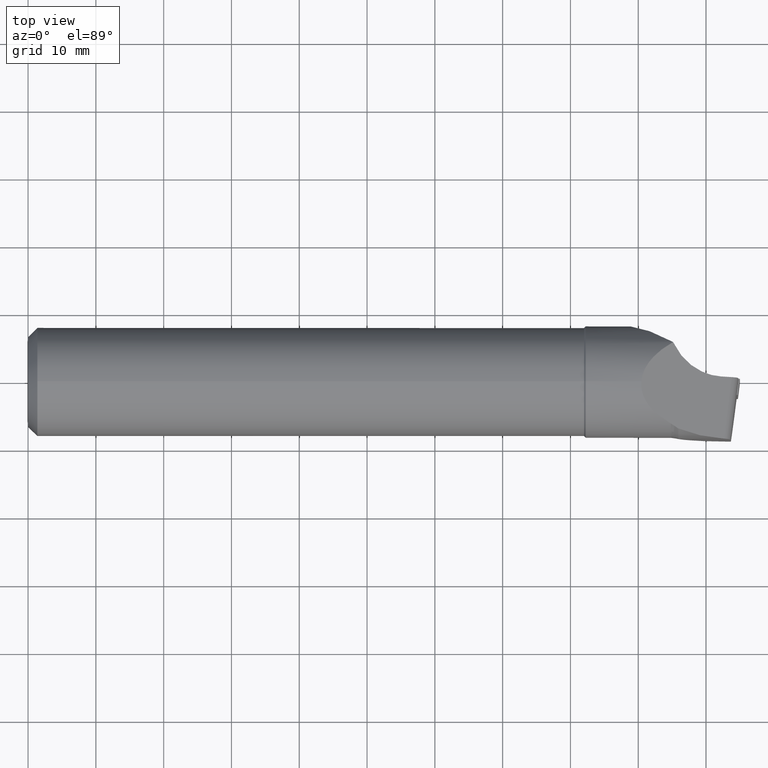
[diagram: clean part render]
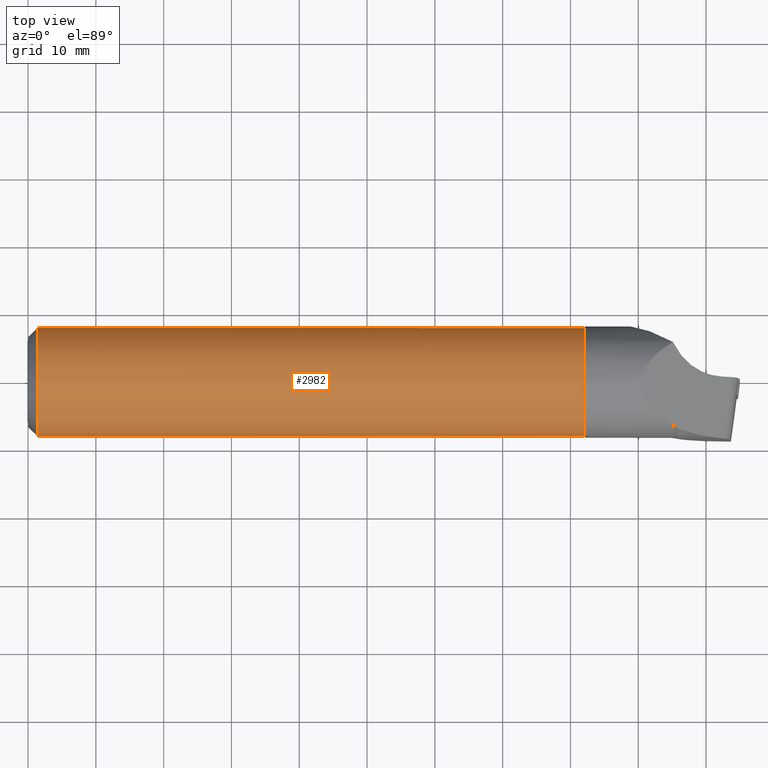
[diagram: same view with one face highlighted and labeled with its STEP entity id]
A machine part, top view. The second image highlights one B-rep face of the part: STEP entity #2982.
In plain terms, the highlighted cylindrical surface (bore or boss wall) has radius 8 mm, axis along (-1, -0, -0).
Its self-contained STEP definition (entity closure, byte-faithful):
#3 = FACE_OUTER_BOUND ( 'NONE', #1301, .T. ) ;
#4 = ORIENTED_EDGE ( 'NONE', *, *, #1723, .T. ) ;
#6 = CARTESIAN_POINT ( 'NONE',  ( -3.175455607189903200, 4.891942354525449200, -6.330000000000004500 ) ) ;
#25 = VERTEX_POINT ( 'NONE', #2370 ) ;
#75 = CARTESIAN_POINT ( 'NONE',  ( 53.00000000000005700, -4.891942354525447500, -6.329999999999993000 ) ) ;
#142 = LINE ( 'NONE', #6, #2165 ) ;
#152 = ORIENTED_EDGE ( 'NONE', *, *, #2342, .T. ) ;
#169 = CARTESIAN_POINT ( 'NONE',  ( 16.00000000000000700, 4.891942354525451900, -6.330000000000003600 ) ) ;
#177 = FACE_BOUND ( 'NONE', #1095, .T. ) ;
#205 = ORIENTED_EDGE ( 'NONE', *, *, #1165, .T. ) ;
#217 = CARTESIAN_POINT ( 'NONE',  ( 24.00000000000002100, -4.891942354525449200, -6.330000000000003600 ) ) ;
#263 = FACE_BOUND ( 'NONE', #2408, .T. ) ;
#298 = VERTEX_POINT ( 'NONE', #754 ) ;
#324 = CARTESIAN_POINT ( 'NONE',  ( 57.18333978702810300, 1.894266158577141200, -8.646660212971928800 ) ) ;
#361 =( BOUNDED_CURVE ( )  B_SPLINE_CURVE ( 3, ( #1146, #2006, #1738, #3734 ),
 .UNSPECIFIED., .F., .F. ) 
 B_SPLINE_CURVE_WITH_KNOTS ( ( 4, 4 ),
 ( 2.483646807032367000, 3.799538500147218800 ),
 .UNSPECIFIED. ) 
 CURVE ( )  GEOMETRIC_REPRESENTATION_ITEM ( )  RATIONAL_B_SPLINE_CURVE ( ( 1.000000000000000000, 0.8608333333333331200, 0.8608333333333331200, 1.000000000000000000 ) ) 
 REPRESENTATION_ITEM ( '' )  );
#380 = CARTESIAN_POINT ( 'NONE',  ( 55.31666021297200300, 1.894266158577141400, -8.646660212971925200 ) ) ;
#389 = CIRCLE ( 'NONE', #2180, 8.000000000000003600 ) ;
#391 = DIRECTION ( 'NONE',  ( -1.000000000000000000, -8.847089727481710000E-017, -5.551115123125779000E-017 ) ) ;
#434 = EDGE_CURVE ( 'NONE', #2116, #1190, #3199, .T. ) ;
#439 = LINE ( 'NONE', #3448, #1822 ) ;
#443 = FACE_BOUND ( 'NONE', #2579, .T. ) ;
#463 = EDGE_CURVE ( 'NONE', #2962, #2805, #361, .T. ) ;
#480 = CARTESIAN_POINT ( 'NONE',  ( -3.175455607189916900, -4.891942354525453700, -6.329999999999999200 ) ) ;
#534 = EDGE_CURVE ( 'NONE', #553, #2448, #142, .T. ) ;
#536 = VECTOR ( 'NONE', #3222, 1000.000000000000000 ) ;
#548 = EDGE_CURVE ( 'NONE', #1247, #1006, #2423, .T. ) ;
#553 = VERTEX_POINT ( 'NONE', #2376 ) ;
#572 = DIRECTION ( 'NONE',  ( -1.000000000000000000, -8.847089727481710000E-017, -5.551115123125779000E-017 ) ) ;
#584 = CARTESIAN_POINT ( 'NONE',  ( 69.81666021297202500, -1.894266158577131000, -8.646660212971925200 ) ) ;
#605 = DIRECTION ( 'NONE',  ( -1.000000000000000000, -8.847089727481710000E-017, -5.551115123125779000E-017 ) ) ;
#629 = CARTESIAN_POINT ( 'NONE',  ( 28.18333978702806800, -1.894266158577138300, -8.646660212971925200 ) ) ;
#645 = ORIENTED_EDGE ( 'NONE', *, *, #667, .T. ) ;
#662 = VERTEX_POINT ( 'NONE', #3597 ) ;
#667 = EDGE_CURVE ( 'NONE', #3195, #1972, #1228, .T. ) ;
#722 = CARTESIAN_POINT ( 'NONE',  ( 13.68333978702805200, 1.894266158577136800, -8.646660212971928800 ) ) ;
#754 = CARTESIAN_POINT ( 'NONE',  ( 16.00000000000000700, 4.891942354525451900, -6.330000000000003600 ) ) ;
#761 = DIRECTION ( 'NONE',  ( 1.000000000000000000, 8.847089727481710000E-017, 5.551115123125779000E-017 ) ) ;
#766 = ORIENTED_EDGE ( 'NONE', *, *, #975, .T. ) ;
#796 = CARTESIAN_POINT ( 'NONE',  ( 59.50000000000004300, 4.891942354525458100, -6.330000000000001800 ) ) ;
#847 = VERTEX_POINT ( 'NONE', #796 ) ;
#856 = DIRECTION ( 'NONE',  ( 1.000000000000000000, 8.847089727481710000E-017, 5.551115123125779000E-017 ) ) ;
#869 = VECTOR ( 'NONE', #1548, 1000.000000000000000 ) ;
#885 = CARTESIAN_POINT ( 'NONE',  ( 1.375000000000008200, 1.084202172485504400E-016, 3.469446951953614200E-015 ) ) ;
#909 = CARTESIAN_POINT ( 'NONE',  ( 59.50000000000004300, 4.891942354525458100, -6.330000000000001800 ) ) ;
#941 = CARTESIAN_POINT ( 'NONE',  ( -3.175455607189916900, -4.891942354525453700, -6.329999999999999200 ) ) ;
#949 = VECTOR ( 'NONE', #761, 1000.000000000000000 ) ;
#950 = ORIENTED_EDGE ( 'NONE', *, *, #2519, .T. ) ;
#967 = ORIENTED_EDGE ( 'NONE', *, *, #1750, .T. ) ;
#975 = EDGE_CURVE ( 'NONE', #1972, #2377, #3657, .T. ) ;
#984 = DIRECTION ( 'NONE',  ( -1.000000000000000000, -8.847089727481710000E-017, -5.551115123125779000E-017 ) ) ;
#1006 = VERTEX_POINT ( 'NONE', #2930 ) ;
#1020 = CARTESIAN_POINT ( 'NONE',  ( -3.175455607189903200, 4.891942354525449200, -6.330000000000004500 ) ) ;
#1023 = CARTESIAN_POINT ( 'NONE',  ( 45.00000000000002800, 4.891942354525459900, -6.330000000000001800 ) ) ;
#1031 = CARTESIAN_POINT ( 'NONE',  ( 30.50000000000001800, 4.891942354525453700, -6.330000000000001800 ) ) ;
#1044 = ORIENTED_EDGE ( 'NONE', *, *, #548, .T. ) ;
#1054 = CARTESIAN_POINT ( 'NONE',  ( 45.00000000000002800, 4.891942354525459900, -6.330000000000001800 ) ) ;
#1095 = EDGE_LOOP ( 'NONE', ( #950, #1222, #967, #1044 ) ) ;
#1146 = CARTESIAN_POINT ( 'NONE',  ( 9.500000000000001800, -4.891942354525450100, -6.330000000000000100 ) ) ;
#1165 = EDGE_CURVE ( 'NONE', #1286, #662, #1659, .T. ) ;
#1168 = ORIENTED_EDGE ( 'NONE', *, *, #1862, .T. ) ;
#1178 = LINE ( 'NONE', #3255, #2343 ) ;
#1190 = VERTEX_POINT ( 'NONE', #3118 ) ;
#1222 = ORIENTED_EDGE ( 'NONE', *, *, #434, .T. ) ;
#1228 = LINE ( 'NONE', #3014, #2752 ) ;
#1229 = ORIENTED_EDGE ( 'NONE', *, *, #3186, .T. ) ;
#1247 = VERTEX_POINT ( 'NONE', #1031 ) ;
#1286 = VERTEX_POINT ( 'NONE', #3225 ) ;
#1295 = CARTESIAN_POINT ( 'NONE',  ( 13.68333978702805400, -1.894266158577140300, -8.646660212971925200 ) ) ;
#1301 = EDGE_LOOP ( 'NONE', ( #1803 ) ) ;
#1329 = ORIENTED_EDGE ( 'NONE', *, *, #463, .T. ) ;
#1400 = CARTESIAN_POINT ( 'NONE',  ( 38.50000000000002100, 4.891942354525455400, -6.329999999999998300 ) ) ;
#1420 = CARTESIAN_POINT ( 'NONE',  ( 69.81666021297202500, 1.894266158577143000, -8.646660212971928800 ) ) ;
#1446 = CARTESIAN_POINT ( 'NONE',  ( 1.374999999999883200, 4.891942354525351500, -6.329999999999999200 ) ) ;
#1498 = CARTESIAN_POINT ( 'NONE',  ( 57.18333978702810300, -1.894266158577135700, -8.646660212971927000 ) ) ;
#1543 = EDGE_CURVE ( 'NONE', #662, #1656, #1751, .T. ) ;
#1548 = DIRECTION ( 'NONE',  ( 1.000000000000000000, 8.847089727481710000E-017, 5.551115123125779000E-017 ) ) ;
#1592 = CARTESIAN_POINT ( 'NONE',  ( 45.00000000000004300, -4.891942354525448300, -6.330000000000001800 ) ) ;
#1596 = CARTESIAN_POINT ( 'NONE',  ( 16.00000000000001800, -4.891942354525453700, -6.330000000000001000 ) ) ;
#1631 = ORIENTED_EDGE ( 'NONE', *, *, #3649, .F. ) ;
#1656 = VERTEX_POINT ( 'NONE', #3145 ) ;
#1659 = LINE ( 'NONE', #941, #869 ) ;
#1686 = CARTESIAN_POINT ( 'NONE',  ( -3.175455607189916900, -4.891942354525453700, -6.329999999999999200 ) ) ;
#1698 = CARTESIAN_POINT ( 'NONE',  ( 1.375000000000001300, -4.891942354525451900, -6.330000000000002700 ) ) ;
#1721 = CARTESIAN_POINT ( 'NONE',  ( 26.31666021297197100, -1.894266158577133900, -8.646660212971925200 ) ) ;
#1723 = EDGE_CURVE ( 'NONE', #2377, #847, #1829, .T. ) ;
#1728 = CARTESIAN_POINT ( 'NONE',  ( 40.81666021297200300, 1.894266158577143000, -8.646660212971928800 ) ) ;
#1738 = CARTESIAN_POINT ( 'NONE',  ( 11.81666021297193800, 1.894266158577135000, -8.646660212971930500 ) ) ;
#1743 = VECTOR ( 'NONE', #391, 1000.000000000000000 ) ;
#1750 = EDGE_CURVE ( 'NONE', #1190, #1247, #1178, .T. ) ;
#1751 =( BOUNDED_CURVE ( )  B_SPLINE_CURVE ( 3, ( #217, #1721, #2532, #3162 ),
 .UNSPECIFIED., .F., .F. ) 
 B_SPLINE_CURVE_WITH_KNOTS ( ( 4, 4 ),
 ( 2.483646807032367400, 3.799538500147218800 ),
 .UNSPECIFIED. ) 
 CURVE ( )  GEOMETRIC_REPRESENTATION_ITEM ( )  RATIONAL_B_SPLINE_CURVE ( ( 1.000000000000000000, 0.8608333333333334500, 0.8608333333333334500, 1.000000000000000000 ) ) 
 REPRESENTATION_ITEM ( '' )  );
#1753 = CARTESIAN_POINT ( 'NONE',  ( 38.50000000000003600, -4.891942354525449200, -6.330000000000003600 ) ) ;
#1759 = EDGE_CURVE ( 'NONE', #847, #3195, #2366, .T. ) ;
#1765 = CARTESIAN_POINT ( 'NONE',  ( 30.50000000000001800, 4.891942354525453700, -6.330000000000001800 ) ) ;
#1803 = ORIENTED_EDGE ( 'NONE', *, *, #3016, .T. ) ;
#1807 = CARTESIAN_POINT ( 'NONE',  ( 28.18333978702806400, 1.894266158577138300, -8.646660212971928800 ) ) ;
#1812 = CARTESIAN_POINT ( 'NONE',  ( 53.00000000000005000, 4.891942354525455400, -6.329999999999994700 ) ) ;
#1822 = VECTOR ( 'NONE', #856, 1000.000000000000000 ) ;
#1829 = LINE ( 'NONE', #3176, #1970 ) ;
#1851 = CARTESIAN_POINT ( 'NONE',  ( 9.500000000000001800, -4.891942354525450100, -6.330000000000000100 ) ) ;
#1862 = EDGE_CURVE ( 'NONE', #25, #553, #2512, .T. ) ;
#1897 = CARTESIAN_POINT ( 'NONE',  ( 67.50000000000005700, 4.891942354525459000, -6.330000000000006300 ) ) ;
#1918 = FACE_BOUND ( 'NONE', #2083, .T. ) ;
#1951 = CARTESIAN_POINT ( 'NONE',  ( 9.500000000000008900, 4.891942354525451900, -6.330000000000001800 ) ) ;
#1970 = VECTOR ( 'NONE', #2177, 1000.000000000000000 ) ;
#1972 = VERTEX_POINT ( 'NONE', #2781 ) ;
#2006 = CARTESIAN_POINT ( 'NONE',  ( 11.81666021297193800, -1.894266158577138800, -8.646660212971928800 ) ) ;
#2073 = DIRECTION ( 'NONE',  ( 2.710505431213759900E-017, 1.951563910473907100E-017, 1.000000000000000000 ) ) ;
#2074 = DIRECTION ( 'NONE',  ( -1.000000000000000000, -8.847089727481710000E-017, -5.551115123125779000E-017 ) ) ;
#2083 = EDGE_LOOP ( 'NONE', ( #645, #766, #4, #3435 ) ) ;
#2116 = VERTEX_POINT ( 'NONE', #2963 ) ;
#2140 = EDGE_CURVE ( 'NONE', #2805, #3534, #3518, .T. ) ;
#2165 = VECTOR ( 'NONE', #2074, 1000.000000000000000 ) ;
#2177 = DIRECTION ( 'NONE',  ( -1.000000000000000000, -8.847089727481710000E-017, -5.551115123125779000E-017 ) ) ;
#2180 = AXIS2_PLACEMENT_3D ( 'NONE', #2199, #984, #3077 ) ;
#2199 = CARTESIAN_POINT ( 'NONE',  ( 82.00000000000007100, 1.170938346284344800E-014, 6.071532165918824800E-015 ) ) ;
#2231 =( BOUNDED_CURVE ( )  B_SPLINE_CURVE ( 3, ( #169, #722, #1295, #1596 ),
 .UNSPECIFIED., .F., .T. ) 
 B_SPLINE_CURVE_WITH_KNOTS ( ( 4, 4 ),
 ( 5.625239460622160500, 6.941131153737012800 ),
 .UNSPECIFIED. ) 
 CURVE ( )  GEOMETRIC_REPRESENTATION_ITEM ( )  RATIONAL_B_SPLINE_CURVE ( ( 1.000000000000000000, 0.8608333333333331200, 0.8608333333333331200, 1.000000000000000000 ) ) 
 REPRESENTATION_ITEM ( '' )  );
#2287 = ORIENTED_EDGE ( 'NONE', *, *, #3383, .T. ) ;
#2338 = CYLINDRICAL_SURFACE ( 'NONE', #2452, 8.000000000000003600 ) ;
#2342 = EDGE_CURVE ( 'NONE', #298, #1286, #2231, .T. ) ;
#2343 = VECTOR ( 'NONE', #572, 1000.000000000000000 ) ;
#2344 = CARTESIAN_POINT ( 'NONE',  ( 67.50000000000005700, -4.891942354525447500, -6.330000000000001800 ) ) ;
#2360 = EDGE_LOOP ( 'NONE', ( #1329, #3503, #1631, #3689 ) ) ;
#2366 =( BOUNDED_CURVE ( )  B_SPLINE_CURVE ( 3, ( #909, #324, #1498, #3546 ),
 .UNSPECIFIED., .F., .F. ) 
 B_SPLINE_CURVE_WITH_KNOTS ( ( 4, 4 ),
 ( 5.625239460622160500, 6.941131153737012800 ),
 .UNSPECIFIED. ) 
 CURVE ( )  GEOMETRIC_REPRESENTATION_ITEM ( )  RATIONAL_B_SPLINE_CURVE ( ( 1.000000000000000000, 0.8608333333333331200, 0.8608333333333331200, 1.000000000000000000 ) ) 
 REPRESENTATION_ITEM ( '' )  );
#2370 = CARTESIAN_POINT ( 'NONE',  ( 53.00000000000005700, -4.891942354525447500, -6.329999999999993000 ) ) ;
#2376 = CARTESIAN_POINT ( 'NONE',  ( 53.00000000000005000, 4.891942354525455400, -6.329999999999994700 ) ) ;
#2377 = VERTEX_POINT ( 'NONE', #1897 ) ;
#2408 = EDGE_LOOP ( 'NONE', ( #1229, #1168, #3125, #2836 ) ) ;
#2423 =( BOUNDED_CURVE ( )  B_SPLINE_CURVE ( 3, ( #1765, #1807, #629, #2648 ),
 .UNSPECIFIED., .F., .F. ) 
 B_SPLINE_CURVE_WITH_KNOTS ( ( 4, 4 ),
 ( 5.625239460622160500, 6.941131153737012800 ),
 .UNSPECIFIED. ) 
 CURVE ( )  GEOMETRIC_REPRESENTATION_ITEM ( )  RATIONAL_B_SPLINE_CURVE ( ( 1.000000000000000000, 0.8608333333333331200, 0.8608333333333331200, 1.000000000000000000 ) ) 
 REPRESENTATION_ITEM ( '' )  );
#2437 = DIRECTION ( 'NONE',  ( -1.000000000000000000, -8.847089727481710000E-017, -5.551115123125779000E-017 ) ) ;
#2448 = VERTEX_POINT ( 'NONE', #1054 ) ;
#2450 = DIRECTION ( 'NONE',  ( 1.000000000000000000, 8.847089727481710000E-017, 5.551115123125779000E-017 ) ) ;
#2452 = AXIS2_PLACEMENT_3D ( 'NONE', #3465, #2437, #3261 ) ;
#2512 =( BOUNDED_CURVE ( )  B_SPLINE_CURVE ( 3, ( #75, #2990, #380, #1812 ),
 .UNSPECIFIED., .F., .F. ) 
 B_SPLINE_CURVE_WITH_KNOTS ( ( 4, 4 ),
 ( 2.483646807032367400, 3.799538500147218800 ),
 .UNSPECIFIED. ) 
 CURVE ( )  GEOMETRIC_REPRESENTATION_ITEM ( )  RATIONAL_B_SPLINE_CURVE ( ( 1.000000000000000000, 0.8608333333333334500, 0.8608333333333334500, 1.000000000000000000 ) ) 
 REPRESENTATION_ITEM ( '' )  );
#2519 = EDGE_CURVE ( 'NONE', #1006, #2116, #3428, .T. ) ;
#2532 = CARTESIAN_POINT ( 'NONE',  ( 26.31666021297197100, 1.894266158577140100, -8.646660212971925200 ) ) ;
#2563 = VECTOR ( 'NONE', #3729, 1000.000000000000000 ) ;
#2579 = EDGE_LOOP ( 'NONE', ( #205, #2998, #2287, #152 ) ) ;
#2648 = CARTESIAN_POINT ( 'NONE',  ( 30.50000000000002500, -4.891942354525452800, -6.330000000000000100 ) ) ;
#2672 = EDGE_CURVE ( 'NONE', #2448, #2882, #2877, .T. ) ;
#2752 = VECTOR ( 'NONE', #2450, 1000.000000000000000 ) ;
#2759 = VERTEX_POINT ( 'NONE', #1698 ) ;
#2781 = CARTESIAN_POINT ( 'NONE',  ( 67.50000000000005700, -4.891942354525447500, -6.330000000000001800 ) ) ;
#2805 = VERTEX_POINT ( 'NONE', #1951 ) ;
#2836 = ORIENTED_EDGE ( 'NONE', *, *, #2672, .T. ) ;
#2877 =( BOUNDED_CURVE ( )  B_SPLINE_CURVE ( 3, ( #1023, #3087, #3104, #1592 ),
 .UNSPECIFIED., .F., .F. ) 
 B_SPLINE_CURVE_WITH_KNOTS ( ( 4, 4 ),
 ( 5.625239460622160500, 6.941131153737012800 ),
 .UNSPECIFIED. ) 
 CURVE ( )  GEOMETRIC_REPRESENTATION_ITEM ( )  RATIONAL_B_SPLINE_CURVE ( ( 1.000000000000000000, 0.8608333333333331200, 0.8608333333333331200, 1.000000000000000000 ) ) 
 REPRESENTATION_ITEM ( '' )  );
#2882 = VERTEX_POINT ( 'NONE', #2902 ) ;
#2891 = VERTEX_POINT ( 'NONE', #3631 ) ;
#2902 = CARTESIAN_POINT ( 'NONE',  ( 45.00000000000004300, -4.891942354525448300, -6.330000000000001800 ) ) ;
#2930 = CARTESIAN_POINT ( 'NONE',  ( 30.50000000000002500, -4.891942354525452800, -6.330000000000000100 ) ) ;
#2936 = CARTESIAN_POINT ( 'NONE',  ( 40.81666021297200300, -1.894266158577132500, -8.646660212971927000 ) ) ;
#2962 = VERTEX_POINT ( 'NONE', #1851 ) ;
#2963 = CARTESIAN_POINT ( 'NONE',  ( 38.50000000000003600, -4.891942354525449200, -6.330000000000003600 ) ) ;
#2980 = CARTESIAN_POINT ( 'NONE',  ( -3.175455607189903200, 4.891942354525449200, -6.330000000000004500 ) ) ;
#2982 = ADVANCED_FACE ( 'NONE', ( #1918, #263, #177, #443, #3023, #3 ), #2338, .T. ) ;
#2990 = CARTESIAN_POINT ( 'NONE',  ( 55.31666021297200300, -1.894266158577132100, -8.646660212971925200 ) ) ;
#2998 = ORIENTED_EDGE ( 'NONE', *, *, #1543, .T. ) ;
#3014 = CARTESIAN_POINT ( 'NONE',  ( -3.175455607189916900, -4.891942354525453700, -6.329999999999999200 ) ) ;
#3016 = EDGE_CURVE ( 'NONE', #2891, #2891, #389, .T. ) ;
#3023 = FACE_OUTER_BOUND ( 'NONE', #2360, .T. ) ;
#3077 = DIRECTION ( 'NONE',  ( 0.0000000000000000000, 1.951563910473904000E-017, 1.000000000000000000 ) ) ;
#3087 = CARTESIAN_POINT ( 'NONE',  ( 42.68333978702808200, 1.894266158577138300, -8.646660212971928800 ) ) ;
#3104 = CARTESIAN_POINT ( 'NONE',  ( 42.68333978702808200, -1.894266158577138300, -8.646660212971927000 ) ) ;
#3118 = CARTESIAN_POINT ( 'NONE',  ( 38.50000000000002100, 4.891942354525455400, -6.329999999999998300 ) ) ;
#3125 = ORIENTED_EDGE ( 'NONE', *, *, #534, .T. ) ;
#3145 = CARTESIAN_POINT ( 'NONE',  ( 24.00000000000001400, 4.891942354525452800, -6.329999999999998300 ) ) ;
#3162 = CARTESIAN_POINT ( 'NONE',  ( 24.00000000000001400, 4.891942354525452800, -6.329999999999998300 ) ) ;
#3176 = CARTESIAN_POINT ( 'NONE',  ( -3.175455607189903200, 4.891942354525449200, -6.330000000000004500 ) ) ;
#3186 = EDGE_CURVE ( 'NONE', #2882, #25, #3299, .T. ) ;
#3195 = VERTEX_POINT ( 'NONE', #3409 ) ;
#3199 =( BOUNDED_CURVE ( )  B_SPLINE_CURVE ( 3, ( #1753, #2936, #1728, #1400 ),
 .UNSPECIFIED., .F., .F. ) 
 B_SPLINE_CURVE_WITH_KNOTS ( ( 4, 4 ),
 ( 2.483646807032367000, 3.799538500147219300 ),
 .UNSPECIFIED. ) 
 CURVE ( )  GEOMETRIC_REPRESENTATION_ITEM ( )  RATIONAL_B_SPLINE_CURVE ( ( 1.000000000000000000, 0.8608333333333331200, 0.8608333333333331200, 1.000000000000000000 ) ) 
 REPRESENTATION_ITEM ( '' )  );
#3222 = DIRECTION ( 'NONE',  ( -1.000000000000000000, -8.847089727481710000E-017, -5.551115123125779000E-017 ) ) ;
#3225 = CARTESIAN_POINT ( 'NONE',  ( 16.00000000000001800, -4.891942354525453700, -6.330000000000001000 ) ) ;
#3240 = EDGE_CURVE ( 'NONE', #2759, #2962, #439, .T. ) ;
#3255 = CARTESIAN_POINT ( 'NONE',  ( -3.175455607189903200, 4.891942354525449200, -6.330000000000004500 ) ) ;
#3261 = DIRECTION ( 'NONE',  ( 5.421010862427519700E-017, 1.951563910473906400E-017, 1.000000000000000000 ) ) ;
#3293 = LINE ( 'NONE', #1020, #1743 ) ;
#3299 = LINE ( 'NONE', #480, #949 ) ;
#3383 = EDGE_CURVE ( 'NONE', #1656, #298, #3293, .T. ) ;
#3409 = CARTESIAN_POINT ( 'NONE',  ( 59.50000000000005700, -4.891942354525447500, -6.329999999999996500 ) ) ;
#3428 = LINE ( 'NONE', #1686, #2563 ) ;
#3435 = ORIENTED_EDGE ( 'NONE', *, *, #1759, .T. ) ;
#3448 = CARTESIAN_POINT ( 'NONE',  ( -3.175455607189916900, -4.891942354525453700, -6.329999999999999200 ) ) ;
#3465 = CARTESIAN_POINT ( 'NONE',  ( -3.175455607189903200, 4.336808689942017700E-016, 8.673617379884035500E-016 ) ) ;
#3498 = CARTESIAN_POINT ( 'NONE',  ( 67.50000000000005700, 4.891942354525459000, -6.330000000000006300 ) ) ;
#3503 = ORIENTED_EDGE ( 'NONE', *, *, #2140, .T. ) ;
#3518 = LINE ( 'NONE', #2980, #536 ) ;
#3534 = VERTEX_POINT ( 'NONE', #1446 ) ;
#3546 = CARTESIAN_POINT ( 'NONE',  ( 59.50000000000005700, -4.891942354525447500, -6.329999999999996500 ) ) ;
#3555 = CIRCLE ( 'NONE', #3746, 8.000000000000003600 ) ;
#3597 = CARTESIAN_POINT ( 'NONE',  ( 24.00000000000002100, -4.891942354525449200, -6.330000000000003600 ) ) ;
#3631 = CARTESIAN_POINT ( 'NONE',  ( 82.00000000000007100, 1.186550857568136100E-014, 8.000000000000010700 ) ) ;
#3649 = EDGE_CURVE ( 'NONE', #2759, #3534, #3555, .T. ) ;
#3657 =( BOUNDED_CURVE ( )  B_SPLINE_CURVE ( 3, ( #2344, #584, #1420, #3498 ),
 .UNSPECIFIED., .F., .F. ) 
 B_SPLINE_CURVE_WITH_KNOTS ( ( 4, 4 ),
 ( 2.483646807032367000, 3.799538500147218400 ),
 .UNSPECIFIED. ) 
 CURVE ( )  GEOMETRIC_REPRESENTATION_ITEM ( )  RATIONAL_B_SPLINE_CURVE ( ( 1.000000000000000000, 0.8608333333333334500, 0.8608333333333334500, 1.000000000000000000 ) ) 
 REPRESENTATION_ITEM ( '' )  );
#3689 = ORIENTED_EDGE ( 'NONE', *, *, #3240, .T. ) ;
#3729 = DIRECTION ( 'NONE',  ( 1.000000000000000000, 8.847089727481710000E-017, 5.551115123125779000E-017 ) ) ;
#3734 = CARTESIAN_POINT ( 'NONE',  ( 9.500000000000008900, 4.891942354525451900, -6.330000000000001800 ) ) ;
#3746 = AXIS2_PLACEMENT_3D ( 'NONE', #885, #605, #2073 ) ;